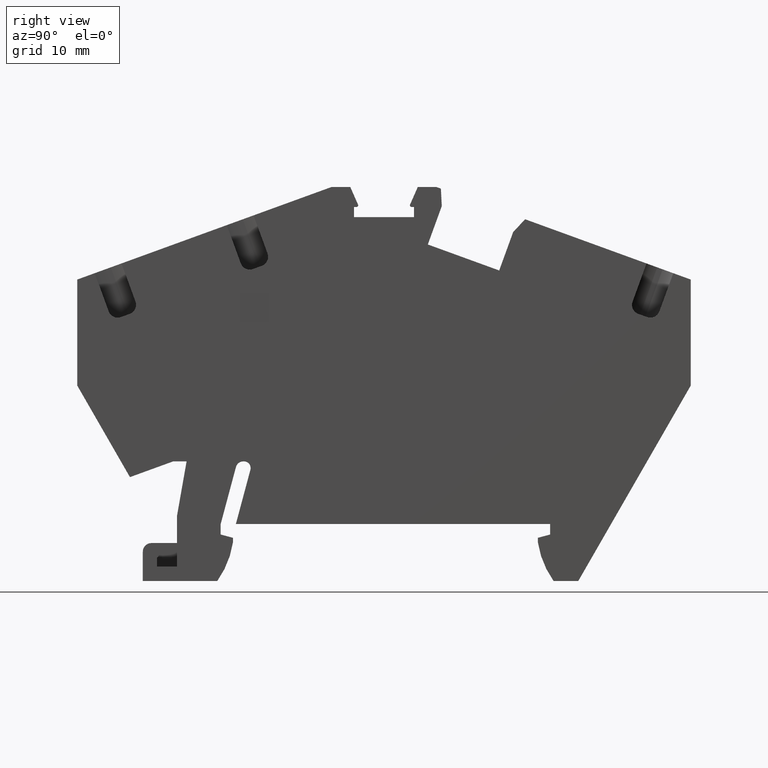
[diagram: clean part render]
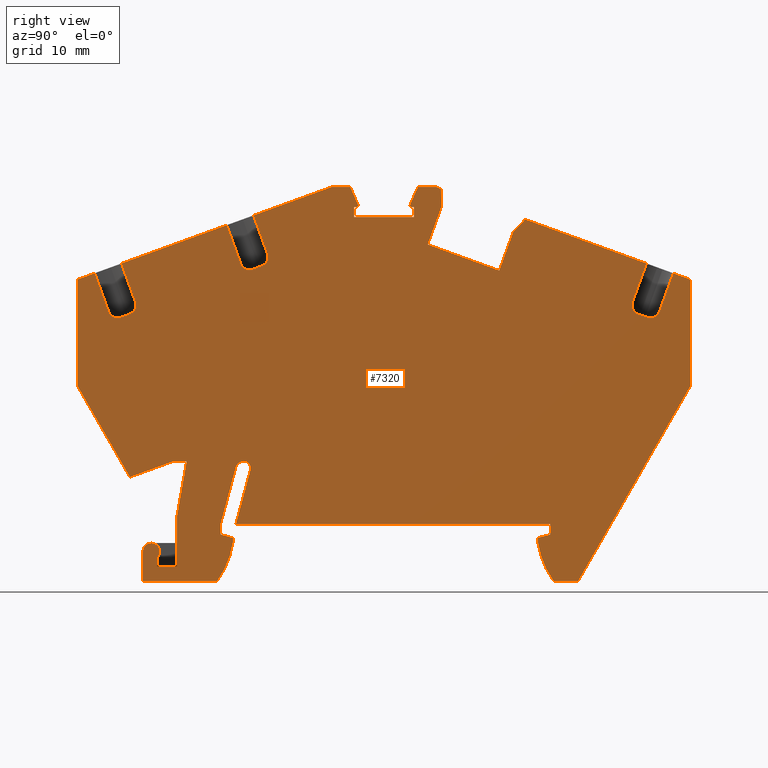
[diagram: same view with one face highlighted and labeled with its STEP entity id]
A machine part, right view. The second image highlights one B-rep face of the part: STEP entity #7320.
In plain terms, the highlighted planar face has unit normal (1, 0, 0).
Its self-contained STEP definition (entity closure, byte-faithful):
#120=CARTESIAN_POINT('',(-91.7914113552714,14.7210876087096,
0.949999999999994));
#130=VERTEX_POINT('',#120);
#280=CARTESIAN_POINT('',(-90.4914113552713,14.3727536585496,
0.949999999999994));
#290=VERTEX_POINT('',#280);
#320=CARTESIAN_POINT('',(-57.0914399670214,5.42325829786009,
0.949999999999994));
#330=DIRECTION('',(0.965925826289174,-0.258819045102127,0.));
#340=VECTOR('',#330,1.);
#350=LINE('',#320,#340);
#360=EDGE_CURVE('',#130,#290,#350,.T.);
#950=CARTESIAN_POINT('',(-69.9771648864539,45.2646062067674,
0.949999999999994));
#960=VERTEX_POINT('',#950);
#990=CARTESIAN_POINT('',(-80.6937578600559,15.821008998583,
0.949999999999994));
#1000=DIRECTION('',(0.342020143328471,0.939692620784889,0.));
#1010=VECTOR('',#1000,1.);
#1020=LINE('',#990,#1010);
#1030=CARTESIAN_POINT('',(-68.5064782701951,49.305284475995,
0.949999999999994));
#1040=VERTEX_POINT('',#1030);
#1050=EDGE_CURVE('',#960,#1040,#1020,.T.);
#1340=CARTESIAN_POINT('',(-71.0317569803008,51.3210876087068,
0.949999999999994));
#1350=VERTEX_POINT('',#1340);
#1500=CARTESIAN_POINT('',(-69.0743843786572,51.321087608707,
0.949999999999994));
#1510=VERTEX_POINT('',#1500);
#1540=CARTESIAN_POINT('',(-57.0914399670214,51.3210876087085,
0.949999999999994));
#1550=DIRECTION('',(-1.,-1.20681242776754E-13,0.));
#1560=VECTOR('',#1550,1.);
#1570=LINE('',#1540,#1560);
#1580=EDGE_CURVE('',#1510,#1350,#1570,.T.);
#1700=CARTESIAN_POINT('',(-57.0914113552716,15.8210876087094,
0.949999999999994));
#1710=DIRECTION('',(0.,0.,1.));
#1720=DIRECTION('',(1.,0.,0.));
#1730=AXIS2_PLACEMENT_3D('',#1700,#1710,#1720);
#1740=PLANE('',#1730);
#1750=ORIENTED_EDGE('',*,*,#1580,.T.);
#1760=CARTESIAN_POINT('',(-57.0914399670214,46.9596525240051,
0.949999999999994));
#1770=DIRECTION('',(0.939692620785908,-0.342020143325669,0.));
#1780=VECTOR('',#1770,1.);
#1790=LINE('',#1760,#1780);
#1800=CARTESIAN_POINT('',(-68.6002129107962,51.1485033084673,
0.949999999999994));
#1810=VERTEX_POINT('',#1800);
#1820=EDGE_CURVE('',#1510,#1810,#1790,.T.);
#1830=ORIENTED_EDGE('',*,*,#1820,.F.);
#1840=CARTESIAN_POINT('',(-66.8036763714981,15.821008998583,
0.949999999999994));
#1850=DIRECTION('',(0.0507881482326916,-0.998709449238914,0.));
#1860=VECTOR('',#1850,1.);
#1870=LINE('',#1840,#1860);
#1880=EDGE_CURVE('',#1810,#1040,#1870,.T.);
#1890=ORIENTED_EDGE('',*,*,#1880,.F.);
#1900=ORIENTED_EDGE('',*,*,#1050,.T.);
#1910=CARTESIAN_POINT('',(-57.0914399670214,40.5745858891534,
0.949999999999994));
#1920=DIRECTION('',(0.93969262078595,-0.342020143325555,0.));
#1930=VECTOR('',#1920,1.);
#1940=LINE('',#1910,#1930);
#1950=CARTESIAN_POINT('',(-62.4596239201825,42.5284450601687,
0.949999999999994));
#1960=VERTEX_POINT('',#1950);
#1970=EDGE_CURVE('',#960,#1960,#1940,.T.);
#1980=ORIENTED_EDGE('',*,*,#1970,.F.);
#1990=CARTESIAN_POINT('',(-72.180335680264,15.821008998583,
0.949999999999994));
#2000=DIRECTION('',(-0.342020143328668,-0.939692620784817,0.));
#2010=VECTOR('',#2000,1.);
#2020=LINE('',#1990,#2010);
#2030=CARTESIAN_POINT('',(-60.9889373038445,46.5691233296529,
0.949999999999994));
#2040=VERTEX_POINT('',#2030);
#2050=EDGE_CURVE('',#2040,#1960,#2020,.T.);
#2060=ORIENTED_EDGE('',*,*,#2050,.T.);
#2070=CARTESIAN_POINT('',(-89.5730501818881,15.821008998583,
0.949999999999994));
#2080=DIRECTION('',(-0.680864038377421,-0.732409831477151,0.));
#2090=VECTOR('',#2080,1.);
#2100=LINE('',#2070,#2090);
#2110=CARTESIAN_POINT('',(-59.7323341760186,47.920859407926,
0.949999999999994));
#2120=VERTEX_POINT('',#2110);
#2130=EDGE_CURVE('',#2120,#2040,#2100,.T.);
#2140=ORIENTED_EDGE('',*,*,#2130,.T.);
#2150=CARTESIAN_POINT('',(-57.0914399670214,46.9596525240051,
0.949999999999994));
#2160=DIRECTION('',(0.939692620785908,-0.342020143325669,0.));
#2170=VECTOR('',#2160,1.);
#2180=LINE('',#2150,#2170);
#2190=CARTESIAN_POINT('',(-46.9435281105688,43.2661146682992,
0.949999999999994));
#2200=VERTEX_POINT('',#2190);
#2210=EDGE_CURVE('',#2120,#2200,#2180,.T.);
#2220=ORIENTED_EDGE('',*,*,#2210,.F.);
#2230=CARTESIAN_POINT('',(-56.9327296506361,15.821008998583,
0.950000000000169));
#2240=DIRECTION('',(0.342020143325669,0.939692620785908,
-7.02216063075412E-15));
#2250=VECTOR('',#2240,1.);
#2260=LINE('',#2230,#2250);
#2270=CARTESIAN_POINT('',(-48.4142147268765,39.2254363988999,
0.949999999999994));
#2280=VERTEX_POINT('',#2270);
#2290=EDGE_CURVE('',#2280,#2200,#2260,.T.);
#2300=ORIENTED_EDGE('',*,*,#2290,.T.);
#2310=CARTESIAN_POINT('',(-47.4745221060906,38.8834162555742,
0.949999999999994));
#2320=DIRECTION('',(1.13992297817283E-15,3.33941159224203E-15,1.));
#2330=DIRECTION('',(0.,1.,-3.33941159224203E-15));
#2340=AXIS2_PLACEMENT_3D('',#2310,#2320,#2330);
#2350=CIRCLE('',#2340,1.);
#2360=CARTESIAN_POINT('',(-47.8165422494162,37.9437236347883,
0.949999999999994));
#2370=VERTEX_POINT('',#2360);
#2380=EDGE_CURVE('',#2280,#2370,#2350,.T.);
#2390=ORIENTED_EDGE('',*,*,#2380,.F.);
#2400=CARTESIAN_POINT('',(-57.0914399670214,41.3195103298601,
0.949999999999994));
#2410=DIRECTION('',(0.939692620785908,-0.342020143325669,0.));
#2420=VECTOR('',#2410,1.);
#2430=LINE('',#2400,#2420);
#2440=CARTESIAN_POINT('',(-47.6286037250096,37.8753196060324,
0.949999999999994));
#2450=VERTEX_POINT('',#2440);
#2460=EDGE_CURVE('',#2370,#2450,#2430,.T.);
#2470=ORIENTED_EDGE('',*,*,#2460,.F.);
#2480=CARTESIAN_POINT('',(-57.0914399670214,41.3195103298601,
0.949999999999994));
#2490=DIRECTION('',(-0.939692620785907,0.342020143325673,0.));
#2500=VECTOR('',#2490,1.);
#2510=LINE('',#2480,#2500);
#2520=CARTESIAN_POINT('',(-47.0647881527802,37.6701075201251,
0.949999999999994));
#2530=VERTEX_POINT('',#2520);
#2540=EDGE_CURVE('',#2530,#2450,#2510,.T.);
#2550=ORIENTED_EDGE('',*,*,#2540,.T.);
#2560=CARTESIAN_POINT('',(-57.0914399670214,41.3195103298601,
0.949999999999994));
#2570=DIRECTION('',(-0.939692620785908,0.342020143325669,0.));
#2580=VECTOR('',#2570,1.);
#2590=LINE('',#2560,#2580);
#2600=CARTESIAN_POINT('',(-46.8768496286304,37.6017034914626,
0.949999999999994));
#2610=VERTEX_POINT('',#2600);
#2620=EDGE_CURVE('',#2610,#2530,#2590,.T.);
#2630=ORIENTED_EDGE('',*,*,#2620,.T.);
#2640=CARTESIAN_POINT('',(-46.5348294853047,38.5413961122485,
0.949999999999994));
#2650=DIRECTION('',(1.13992297817274E-15,3.33941159224206E-15,1.));
#2660=DIRECTION('',(0.,1.,-3.33941159224206E-15));
#2670=AXIS2_PLACEMENT_3D('',#2640,#2650,#2660);
#2680=CIRCLE('',#2670,1.);
#2690=CARTESIAN_POINT('',(-45.5951368645188,38.1993759689229,
0.949999999999994));
#2700=VERTEX_POINT('',#2690);
#2710=EDGE_CURVE('',#2610,#2700,#2680,.T.);
#2720=ORIENTED_EDGE('',*,*,#2710,.F.);
#2730=CARTESIAN_POINT('',(-53.7401963332085,15.821008998583,
0.950000000000168));
#2740=DIRECTION('',(-0.342020143325669,-0.939692620785908,
7.02216063075412E-15));
#2750=VECTOR('',#2740,1.);
#2760=LINE('',#2730,#2750);
#2770=CARTESIAN_POINT('',(-44.1244502482112,42.2400542383223,
0.949999999999994));
#2780=VERTEX_POINT('',#2770);
#2790=EDGE_CURVE('',#2780,#2700,#2760,.T.);
#2800=ORIENTED_EDGE('',*,*,#2790,.T.);
#2810=CARTESIAN_POINT('',(-42.2914113552746,41.5728826430411,
0.949999999999994));
#2820=VERTEX_POINT('',#2810);
#2830=EDGE_CURVE('',#2780,#2820,#2180,.T.);
#2840=ORIENTED_EDGE('',*,*,#2830,.F.);
#2850=CARTESIAN_POINT('',(-42.2914113552746,15.821008998583,
0.949999999999994));
#2860=DIRECTION('',(0.,-1.,0.));
#2870=VECTOR('',#2860,1.);
#2880=LINE('',#2850,#2870);
#2890=CARTESIAN_POINT('',(-42.2914113552746,30.4013315533565,
0.949999999999994));
#2900=VERTEX_POINT('',#2890);
#2910=EDGE_CURVE('',#2820,#2900,#2880,.T.);
#2920=ORIENTED_EDGE('',*,*,#2910,.F.);
#2930=CARTESIAN_POINT('',(-50.6820269625919,15.821008998583,
0.949999999999994));
#2940=DIRECTION('',(-0.498780693240353,-0.86672822733004,0.));
#2950=VECTOR('',#2940,1.);
#2960=LINE('',#2930,#2950);
#2970=CARTESIAN_POINT('',(-54.1308827743639,9.82795288280909,
0.949999999999994));
#2980=VERTEX_POINT('',#2970);
#2990=EDGE_CURVE('',#2900,#2980,#2960,.T.);
#3000=ORIENTED_EDGE('',*,*,#2990,.F.);
#3010=CARTESIAN_POINT('',(-57.0914399670214,9.82795288280909,
0.949999999999994));
#3020=DIRECTION('',(-1.,0.,0.));
#3030=VECTOR('',#3020,1.);
#3040=LINE('',#3010,#3030);
#3050=CARTESIAN_POINT('',(-56.7373583126248,9.82795288280909,
0.949999999999989));
#3060=VERTEX_POINT('',#3050);
#3070=EDGE_CURVE('',#2980,#3060,#3040,.T.);
#3080=ORIENTED_EDGE('',*,*,#3070,.F.);
#3090=CARTESIAN_POINT('',(-48.9974386758954,15.3364593970074,
0.949999999999994));
#3100=DIRECTION('',(0.,0.,1.));
#3110=DIRECTION('',(1.,1.20764509503601E-13,0.));
#3120=AXIS2_PLACEMENT_3D('',#3090,#3100,#3110);
#3130=CIRCLE('',#3120,9.4999999999997);
#3140=CARTESIAN_POINT('',(-58.3914113552724,13.9210876087083,
0.949999999999989));
#3150=VERTEX_POINT('',#3140);
#3160=EDGE_CURVE('',#3150,#3060,#3130,.T.);
#3170=ORIENTED_EDGE('',*,*,#3160,.T.);
#3180=CARTESIAN_POINT('',(-58.3914113552727,15.821008998583,
0.949999999999994));
#3190=DIRECTION('',(-1.20681242776754E-13,1.,0.));
#3200=VECTOR('',#3190,1.);
#3210=LINE('',#3180,#3200);
#3220=CARTESIAN_POINT('',(-58.3914113552725,14.3727536585494,
0.949999999999994));
#3230=VERTEX_POINT('',#3220);
#3240=EDGE_CURVE('',#3150,#3230,#3210,.T.);
#3250=ORIENTED_EDGE('',*,*,#3240,.F.);
#3260=CARTESIAN_POINT('',(-57.0914399670214,14.7210799422142,
0.949999999999994));
#3270=DIRECTION('',(0.965925826289197,0.25881904510204,0.));
#3280=VECTOR('',#3270,1.);
#3290=LINE('',#3260,#3280);
#3300=CARTESIAN_POINT('',(-57.0914113552714,14.7210876087095,
0.949999999999994));
#3310=VERTEX_POINT('',#3300);
#3320=EDGE_CURVE('',#3230,#3310,#3290,.T.);
#3330=ORIENTED_EDGE('',*,*,#3320,.F.);
#3340=CARTESIAN_POINT('',(-57.0914113552716,15.821008998583,
0.949999999999994));
#3350=DIRECTION('',(-1.20681242776754E-13,1.,0.));
#3360=VECTOR('',#3350,1.);
#3370=LINE('',#3340,#3360);
#3380=CARTESIAN_POINT('',(-57.0914113552716,15.8210876087094,
0.949999999999994));
#3390=VERTEX_POINT('',#3380);
#3400=EDGE_CURVE('',#3310,#3390,#3370,.T.);
#3410=ORIENTED_EDGE('',*,*,#3400,.F.);
#3420=CARTESIAN_POINT('',(-57.0914399670214,15.8210876087094,
0.949999999999994));
#3430=DIRECTION('',(-1.,-1.48710207451752E-13,0.));
#3440=VECTOR('',#3430,1.);
#3450=LINE('',#3420,#3440);
#3460=CARTESIAN_POINT('',(-90.1914113552721,15.8210876087045,
0.949999999999994));
#3470=VERTEX_POINT('',#3460);
#3480=EDGE_CURVE('',#3390,#3470,#3450,.T.);
#3490=ORIENTED_EDGE('',*,*,#3480,.F.);
#3500=CARTESIAN_POINT('',(-90.1914324187906,15.821008998583,
0.949999999999994));
#3510=DIRECTION('',(0.258819045102841,0.965925826288983,0.));
#3520=VECTOR('',#3510,1.);
#3530=LINE('',#3500,#3520);
#3540=CARTESIAN_POINT('',(-88.6590563678109,21.5399142771337,
0.949999999999994));
#3550=VERTEX_POINT('',#3540);
#3560=EDGE_CURVE('',#3470,#3550,#3530,.T.);
#3570=ORIENTED_EDGE('',*,*,#3560,.F.);
#3580=CARTESIAN_POINT('',(-89.3352044462132,21.7210876087057,
0.949999999999994));
#3590=DIRECTION('',(-1.88349469989046E-31,-7.56143785790124E-15,-1.));
#3600=DIRECTION('',(-1.,-1.20681242776754E-13,9.12712067340711E-28));
#3610=AXIS2_PLACEMENT_3D('',#3580,#3590,#3600);
#3620=CIRCLE('',#3610,0.7);
#3630=CARTESIAN_POINT('',(-89.3352044462133,22.4210876087057,
0.949999999999994));
#3640=VERTEX_POINT('',#3630);
#3650=EDGE_CURVE('',#3640,#3550,#3620,.T.);
#3660=ORIENTED_EDGE('',*,*,#3650,.T.);
#3670=CARTESIAN_POINT('',(-57.0914399670214,22.4210876087096,
0.949999999999994));
#3680=DIRECTION('',(-1.,-1.20681242776754E-13,0.));
#3690=VECTOR('',#3680,1.);
#3700=LINE('',#3670,#3690);
#3710=CARTESIAN_POINT('',(-89.4090850948444,22.4210876087057,
0.949999999999994));
#3720=VERTEX_POINT('',#3710);
#3730=EDGE_CURVE('',#3640,#3720,#3700,.T.);
#3740=ORIENTED_EDGE('',*,*,#3730,.F.);
#3750=CARTESIAN_POINT('',(-89.4090850948423,21.621087608711,
0.949999999999994));
#3760=DIRECTION('',(0.,0.,1.));
#3770=DIRECTION('',(1.,0.,0.));
#3780=AXIS2_PLACEMENT_3D('',#3750,#3760,#3770);
#3790=CIRCLE('',#3780,0.800000000000103);
#3800=CARTESIAN_POINT('',(-90.1818257558743,21.828142844793,
0.949999999999994));
#3810=VERTEX_POINT('',#3800);
#3820=EDGE_CURVE('',#3720,#3810,#3790,.T.);
#3830=ORIENTED_EDGE('',*,*,#3820,.F.);
#3840=CARTESIAN_POINT('',(-91.7914324187939,15.821008998583,
0.949999999999994));
#3850=DIRECTION('',(-0.258819045102824,-0.965925826288987,0.));
#3860=VECTOR('',#3850,1.);
#3870=LINE('',#3840,#3860);
#3880=CARTESIAN_POINT('',(-91.7914113552714,15.821087608719,
0.949999999999994));
#3890=VERTEX_POINT('',#3880);
#3900=EDGE_CURVE('',#3810,#3890,#3870,.T.);
#3910=ORIENTED_EDGE('',*,*,#3900,.F.);
#3920=CARTESIAN_POINT('',(-91.7914113552714,15.821008998583,
0.949999999999994));
#3930=DIRECTION('',(0.,-1.,0.));
#3940=VECTOR('',#3930,1.);
#3950=LINE('',#3920,#3940);
#3960=EDGE_CURVE('',#3890,#130,#3950,.T.);
#3970=ORIENTED_EDGE('',*,*,#3960,.F.);
#3980=ORIENTED_EDGE('',*,*,#360,.F.);
#3990=CARTESIAN_POINT('',(-90.4914113552713,15.821008998583,
0.949999999999994));
#4000=DIRECTION('',(0.,-1.,0.));
#4010=VECTOR('',#4000,1.);
#4020=LINE('',#3990,#4010);
#4030=CARTESIAN_POINT('',(-90.4914113552713,13.921087608707,
0.949999999999989));
#4040=VERTEX_POINT('',#4030);
#4050=EDGE_CURVE('',#290,#4040,#4020,.T.);
#4060=ORIENTED_EDGE('',*,*,#4050,.F.);
#4070=CARTESIAN_POINT('',(-99.8853840346481,15.3364593970085,
0.949999999999994));
#4080=DIRECTION('',(0.,0.,1.));
#4090=DIRECTION('',(1.,8.32667268468867E-17,0.));
#4100=AXIS2_PLACEMENT_3D('',#4070,#4080,#4090);
#4110=CIRCLE('',#4100,9.49999999999992);
#4120=CARTESIAN_POINT('',(-92.150355008404,9.82108760870995,
0.949999999999989));
#4130=VERTEX_POINT('',#4120);
#4140=EDGE_CURVE('',#4130,#4040,#4110,.T.);
#4150=ORIENTED_EDGE('',*,*,#4140,.T.);
#4160=CARTESIAN_POINT('',(-57.0914399670214,9.82108760870995,
0.949999999999994));
#4170=DIRECTION('',(-1.,0.,0.));
#4180=VECTOR('',#4170,1.);
#4190=LINE('',#4160,#4180);
#4200=CARTESIAN_POINT('',(-99.991411355272,9.82108760870995,
0.949999999999994));
#4210=VERTEX_POINT('',#4200);
#4220=EDGE_CURVE('',#4130,#4210,#4190,.T.);
#4230=ORIENTED_EDGE('',*,*,#4220,.F.);
#4240=CARTESIAN_POINT('',(-99.9914113552694,15.821008998583,
0.949999999999994));
#4250=DIRECTION('',(4.33092715129891E-13,1.,0.));
#4260=VECTOR('',#4250,1.);
#4270=LINE('',#4240,#4260);
#4280=CARTESIAN_POINT('',(-99.9914113552707,12.9210876087103,
0.949999999999994));
#4290=VERTEX_POINT('',#4280);
#4300=EDGE_CURVE('',#4210,#4290,#4270,.T.);
#4310=ORIENTED_EDGE('',*,*,#4300,.F.);
#4320=CARTESIAN_POINT('',(-99.0914113552707,12.9210876087099,
0.949999999999994));
#4330=DIRECTION('',(0.,0.,1.));
#4340=DIRECTION('',(1.,0.,0.));
#4350=AXIS2_PLACEMENT_3D('',#4320,#4330,#4340);
#4360=CIRCLE('',#4350,0.9);
#4370=CARTESIAN_POINT('',(-99.091411355272,13.8210876087099,
0.949999999999994));
#4380=VERTEX_POINT('',#4370);
#4390=EDGE_CURVE('',#4380,#4290,#4360,.T.);
#4400=ORIENTED_EDGE('',*,*,#4390,.T.);
#4410=CARTESIAN_POINT('',(-99.091411355272,12.9210876086877,
0.949999999999994));
#4420=DIRECTION('',(-3.08148791101958E-33,5.55111512312578E-17,1.));
#4430=DIRECTION('',(1.,5.55111512312578E-17,2.05268329735081E-48));
#4440=AXIS2_PLACEMENT_3D('',#4410,#4420,#4430);
#4450=CIRCLE('',#4440,0.899999999999636);
#4460=CARTESIAN_POINT('',(-98.4914113552716,12.2502672154385,
0.949999999999994));
#4470=VERTEX_POINT('',#4460);
#4480=EDGE_CURVE('',#4470,#4380,#4450,.T.);
#4490=ORIENTED_EDGE('',*,*,#4480,.T.);
#4500=CARTESIAN_POINT('',(-98.4914113552716,15.821008998583,
0.949999999999994));
#4510=DIRECTION('',(-5.55111512312578E-17,1.,0.));
#4520=VECTOR('',#4510,1.);
#4530=LINE('',#4500,#4520);
#4540=CARTESIAN_POINT('',(-98.4914113552716,11.3210876086873,
0.949999999999994));
#4550=VERTEX_POINT('',#4540);
#4560=EDGE_CURVE('',#4550,#4470,#4530,.T.);
#4570=ORIENTED_EDGE('',*,*,#4560,.T.);
#4580=CARTESIAN_POINT('',(-57.0914399670214,11.3210876086873,
0.949999999999994));
#4590=DIRECTION('',(-1.,-5.55111512312578E-17,0.));
#4600=VECTOR('',#4590,1.);
#4610=LINE('',#4580,#4600);
#4620=CARTESIAN_POINT('',(-96.3914113552722,11.3210876086873,
0.949999999999994));
#4630=VERTEX_POINT('',#4620);
#4640=EDGE_CURVE('',#4630,#4550,#4610,.T.);
#4650=ORIENTED_EDGE('',*,*,#4640,.T.);
#4660=CARTESIAN_POINT('',(-96.3914113552722,15.821008998583,
0.949999999999994));
#4670=DIRECTION('',(0.,-1.,0.));
#4680=VECTOR('',#4670,1.);
#4690=LINE('',#4660,#4680);
#4700=CARTESIAN_POINT('',(-96.3914113552722,16.6826776071324,
0.949999999999994));
#4710=VERTEX_POINT('',#4700);
#4720=EDGE_CURVE('',#4710,#4630,#4690,.T.);
#4730=ORIENTED_EDGE('',*,*,#4720,.T.);
#4740=CARTESIAN_POINT('',(-96.5433467793888,15.821008998583,
0.949999999999994));
#4750=DIRECTION('',(0.173648177666793,0.984807753012232,0.));
#4760=VECTOR('',#4750,1.);
#4770=LINE('',#4740,#4760);
#4780=CARTESIAN_POINT('',(-95.3795748456269,22.4210876087139,
0.949999999999994));
#4790=VERTEX_POINT('',#4780);
#4800=EDGE_CURVE('',#4710,#4790,#4770,.T.);
#4810=ORIENTED_EDGE('',*,*,#4800,.F.);
#4820=CARTESIAN_POINT('',(-57.0914399670214,22.4210876087139,
0.949999999999994));
#4830=DIRECTION('',(-1.,0.,0.));
#4840=VECTOR('',#4830,1.);
#4850=LINE('',#4820,#4840);
#4860=CARTESIAN_POINT('',(-96.7949313705927,22.4210876087139,
0.949999999999994));
#4870=VERTEX_POINT('',#4860);
#4880=EDGE_CURVE('',#4790,#4870,#4850,.T.);
#4890=ORIENTED_EDGE('',*,*,#4880,.F.);
#4900=CARTESIAN_POINT('',(-57.0914399670214,36.8719766760618,
0.949999999999994));
#4910=DIRECTION('',(-0.939692620785879,-0.342020143325751,0.));
#4920=VECTOR('',#4910,1.);
#4930=LINE('',#4900,#4920);
#4940=CARTESIAN_POINT('',(-101.345776693128,20.7647153705612,
0.949999999999999));
#4950=VERTEX_POINT('',#4940);
#4960=EDGE_CURVE('',#4870,#4950,#4930,.T.);
#4970=ORIENTED_EDGE('',*,*,#4960,.F.);
#4980=CARTESIAN_POINT('',(-98.5007957479613,15.821008998583,
0.949999999999994));
#4990=DIRECTION('',(-0.498780693240336,0.86672822733005,0.));
#5000=VECTOR('',#4990,1.);
#5010=LINE('',#4980,#5000);
#5020=CARTESIAN_POINT('',(-106.891411355273,30.4013315533481,
0.949999999999994));
#5030=VERTEX_POINT('',#5020);
#5040=EDGE_CURVE('',#4950,#5030,#5010,.T.);
#5050=ORIENTED_EDGE('',*,*,#5040,.F.);
#5060=CARTESIAN_POINT('',(-106.891411355272,15.821008998583,
0.949999999999994));
#5070=DIRECTION('',(-1.20681242776754E-13,1.,0.));
#5080=VECTOR('',#5070,1.);
#5090=LINE('',#5060,#5080);
#5100=CARTESIAN_POINT('',(-106.891411355275,41.5728826430331,
0.949999999999994));
#5110=VERTEX_POINT('',#5100);
#5120=EDGE_CURVE('',#5030,#5110,#5090,.T.);
#5130=ORIENTED_EDGE('',*,*,#5120,.F.);
#5140=CARTESIAN_POINT('',(-57.0914399670214,59.6985898956732,
0.949999999999994));
#5150=DIRECTION('',(0.939692620785864,0.342020143325792,0.));
#5160=VECTOR('',#5150,1.);
#5170=LINE('',#5140,#5160);
#5180=CARTESIAN_POINT('',(-105.058401074085,42.2400438244904,
0.949999999999994));
#5190=VERTEX_POINT('',#5180);
#5200=EDGE_CURVE('',#5110,#5190,#5170,.T.);
#5210=ORIENTED_EDGE('',*,*,#5200,.F.);
#5220=CARTESIAN_POINT('',(-95.4426587794092,15.821008998583,
0.950000000000163));
#5230=DIRECTION('',(-0.342020143325769,0.939692620785872,
-7.07767178198537E-15));
#5240=VECTOR('',#5230,1.);
#5250=LINE('',#5220,#5240);
#5260=CARTESIAN_POINT('',(-103.587714457777,38.1993655550914,
0.949999999999996));
#5270=VERTEX_POINT('',#5260);
#5280=EDGE_CURVE('',#5270,#5190,#5250,.T.);
#5290=ORIENTED_EDGE('',*,*,#5280,.T.);
#5300=CARTESIAN_POINT('',(-102.648021836991,38.5413856984172,
0.949999999999994));
#5310=DIRECTION('',(-1.25459442485344E-15,-4.32196695483852E-15,-1.));
#5320=DIRECTION('',(0.,-1.,4.32196695483852E-15));
#5330=AXIS2_PLACEMENT_3D('',#5300,#5310,#5320);
#5340=CIRCLE('',#5330,1.);
#5350=CARTESIAN_POINT('',(-102.306001693665,37.6016930776313,
0.949999999999994));
#5360=VERTEX_POINT('',#5350);
#5370=EDGE_CURVE('',#5360,#5270,#5340,.T.);
#5380=ORIENTED_EDGE('',*,*,#5370,.T.);
#5390=CARTESIAN_POINT('',(-57.0914399670214,54.0584477015215,
0.949999999999994));
#5400=DIRECTION('',(0.939692620785908,0.342020143325669,0.));
#5410=VECTOR('',#5400,1.);
#5420=LINE('',#5390,#5410);
#5430=CARTESIAN_POINT('',(-102.118063169516,37.6700971062937,
0.949999999999994));
#5440=VERTEX_POINT('',#5430);
#5450=EDGE_CURVE('',#5360,#5440,#5420,.T.);
#5460=ORIENTED_EDGE('',*,*,#5450,.F.);
#5470=CARTESIAN_POINT('',(-57.0914399670214,54.0584477015215,
0.949999999999994));
#5480=DIRECTION('',(0.939692620785908,0.342020143325669,0.));
#5490=VECTOR('',#5480,1.);
#5500=LINE('',#5470,#5490);
#5510=CARTESIAN_POINT('',(-101.554247597528,37.8753091921128,
0.949999999999994));
#5520=VERTEX_POINT('',#5510);
#5530=EDGE_CURVE('',#5440,#5520,#5500,.T.);
#5540=ORIENTED_EDGE('',*,*,#5530,.F.);
#5550=CARTESIAN_POINT('',(-57.0914399670214,54.0584477015215,
0.949999999999994));
#5560=DIRECTION('',(-0.939692620785908,-0.342020143325669,0.));
#5570=VECTOR('',#5560,1.);
#5580=LINE('',#5550,#5570);
#5590=CARTESIAN_POINT('',(-101.366309072879,37.9437132209569,
0.949999999999994));
#5600=VERTEX_POINT('',#5590);
#5610=EDGE_CURVE('',#5600,#5520,#5580,.T.);
#5620=ORIENTED_EDGE('',*,*,#5610,.T.);
#5630=CARTESIAN_POINT('',(-101.708329216205,38.8834058417428,
0.949999999999994));
#5640=DIRECTION('',(1.25459442485363E-15,4.32196695483859E-15,1.));
#5650=DIRECTION('',(0.,1.,-4.32196695483859E-15));
#5660=AXIS2_PLACEMENT_3D('',#5630,#5640,#5650);
#5670=CIRCLE('',#5660,1.);
#5680=CARTESIAN_POINT('',(-100.768636595419,39.2254259850686,
0.949999999999994));
#5690=VERTEX_POINT('',#5680);
#5700=EDGE_CURVE('',#5600,#5690,#5670,.T.);
#5710=ORIENTED_EDGE('',*,*,#5700,.F.);
#5720=CARTESIAN_POINT('',(-92.2501254619806,15.821008998583,
0.950000000000171));
#5730=DIRECTION('',(-0.342020143325795,0.939692620785862,
-7.07767178198537E-15));
#5740=VECTOR('',#5730,1.);
#5750=LINE('',#5720,#5740);
#5760=CARTESIAN_POINT('',(-102.239323211727,43.2661042544677,
0.949999999999994));
#5770=VERTEX_POINT('',#5760);
#5780=EDGE_CURVE('',#5690,#5770,#5750,.T.);
#5790=ORIENTED_EDGE('',*,*,#5780,.F.);
#5800=CARTESIAN_POINT('',(-91.1509502864542,47.3019419457121,
0.949999999999994));
#5810=VERTEX_POINT('',#5800);
#5820=EDGE_CURVE('',#5770,#5810,#5170,.T.);
#5830=ORIENTED_EDGE('',*,*,#5820,.F.);
#5840=CARTESIAN_POINT('',(-79.6928277467651,15.821008998583,
0.950000000000202));
#5850=DIRECTION('',(-0.342020143325769,0.939692620785872,
-7.07767178198537E-15));
#5860=VECTOR('',#5850,1.);
#5870=LINE('',#5840,#5860);
#5880=CARTESIAN_POINT('',(-89.6802636701461,43.261263676313,
0.949999999999994));
#5890=VERTEX_POINT('',#5880);
#5900=EDGE_CURVE('',#5890,#5810,#5870,.T.);
#5910=ORIENTED_EDGE('',*,*,#5900,.T.);
#5920=CARTESIAN_POINT('',(-88.7405710493602,43.6032838196387,
0.949999999999994));
#5930=DIRECTION('',(-1.25459442485344E-15,-4.32196695483852E-15,-1.));
#5940=DIRECTION('',(0.,-1.,4.32196695483852E-15));
#5950=AXIS2_PLACEMENT_3D('',#5920,#5930,#5940);
#5960=CIRCLE('',#5950,1.);
#5970=CARTESIAN_POINT('',(-88.3985509060345,42.6635911988528,
0.949999999999994));
#5980=VERTEX_POINT('',#5970);
#5990=EDGE_CURVE('',#5980,#5890,#5960,.T.);
#6000=ORIENTED_EDGE('',*,*,#5990,.T.);
#6010=CARTESIAN_POINT('',(-57.0914399670214,54.0584477015234,
0.949999999999994));
#6020=DIRECTION('',(0.939692620785908,0.342020143325669,0.));
#6030=VECTOR('',#6020,1.);
#6040=LINE('',#6010,#6030);
#6050=CARTESIAN_POINT('',(-88.2106123818847,42.7319952275153,
0.949999999999994));
#6060=VERTEX_POINT('',#6050);
#6070=EDGE_CURVE('',#5980,#6060,#6040,.T.);
#6080=ORIENTED_EDGE('',*,*,#6070,.F.);
#6090=CARTESIAN_POINT('',(-57.0914399670214,54.0584477015234,
0.949999999999994));
#6100=DIRECTION('',(0.939692620785908,0.342020143325669,0.));
#6110=VECTOR('',#6100,1.);
#6120=LINE('',#6090,#6110);
#6130=CARTESIAN_POINT('',(-87.646796809897,42.9372073133346,
0.949999999999994));
#6140=VERTEX_POINT('',#6130);
#6150=EDGE_CURVE('',#6060,#6140,#6120,.T.);
#6160=ORIENTED_EDGE('',*,*,#6150,.F.);
#6170=CARTESIAN_POINT('',(-57.0914399670214,54.0584477015234,
0.949999999999994));
#6180=DIRECTION('',(-0.939692620785908,-0.342020143325669,0.));
#6190=VECTOR('',#6180,1.);
#6200=LINE('',#6170,#6190);
#6210=CARTESIAN_POINT('',(-87.4588582852486,43.0056113421785,
0.949999999999997));
#6220=VERTEX_POINT('',#6210);
#6230=EDGE_CURVE('',#6220,#6140,#6200,.T.);
#6240=ORIENTED_EDGE('',*,*,#6230,.T.);
#6250=CARTESIAN_POINT('',(-87.8008784285743,43.9453039629644,
0.949999999999994));
#6260=DIRECTION('',(1.25459442485363E-15,4.32196695483859E-15,1.));
#6270=DIRECTION('',(0.,1.,-4.32196695483859E-15));
#6280=AXIS2_PLACEMENT_3D('',#6250,#6260,#6270);
#6290=CIRCLE('',#6280,1.);
#6300=CARTESIAN_POINT('',(-86.8611858077884,44.2873241062902,
0.949999999999991));
#6310=VERTEX_POINT('',#6300);
#6320=EDGE_CURVE('',#6220,#6310,#6290,.T.);
#6330=ORIENTED_EDGE('',*,*,#6320,.F.);
#6340=CARTESIAN_POINT('',(-76.5002944293363,15.821008998583,
0.950000000000209));
#6350=DIRECTION('',(-0.342020143325795,0.939692620785862,
-7.07767178198537E-15));
#6360=VECTOR('',#6350,1.);
#6370=LINE('',#6340,#6360);
#6380=CARTESIAN_POINT('',(-88.3318724240966,48.3280023756895,
0.949999999999994));
#6390=VERTEX_POINT('',#6380);
#6400=EDGE_CURVE('',#6310,#6390,#6370,.T.);
#6410=ORIENTED_EDGE('',*,*,#6400,.F.);
#6420=CARTESIAN_POINT('',(-57.0914399670214,59.6985898956732,
0.949999999999994));
#6430=DIRECTION('',(0.939692620785864,0.342020143325792,0.));
#6440=VECTOR('',#6430,1.);
#6450=LINE('',#6420,#6440);
#6460=CARTESIAN_POINT('',(-80.1084383318848,51.3210876087057,
0.949999999999994));
#6470=VERTEX_POINT('',#6460);
#6480=EDGE_CURVE('',#6390,#6470,#6450,.T.);
#6490=ORIENTED_EDGE('',*,*,#6480,.F.);
#6500=CARTESIAN_POINT('',(-57.0914399670214,51.3210876087085,
0.949999999999994));
#6510=DIRECTION('',(-1.,-1.20681242776754E-13,0.));
#6520=VECTOR('',#6510,1.);
#6530=LINE('',#6500,#6520);
#6540=CARTESIAN_POINT('',(-78.1430649812728,51.321087608706,
0.949999999999994));
#6550=VERTEX_POINT('',#6540);
#6560=EDGE_CURVE('',#6550,#6470,#6530,.T.);
#6570=ORIENTED_EDGE('',*,*,#6560,.T.);
#6580=CARTESIAN_POINT('',(-62.5423768046803,15.821008998583,
0.949999999999994));
#6590=DIRECTION('',(0.402320578212237,-0.915498854366827,0.));
#6600=VECTOR('',#6590,1.);
#6610=LINE('',#6580,#6600);
#6620=CARTESIAN_POINT('',(-77.3227758010558,49.4544821070031,
0.949999999999993));
#6630=VERTEX_POINT('',#6620);
#6640=EDGE_CURVE('',#6550,#6630,#6610,.T.);
#6650=ORIENTED_EDGE('',*,*,#6640,.F.);
#6660=CARTESIAN_POINT('',(-77.478410606297,49.386087608707,
0.949999999999994));
#6670=DIRECTION('',(1.88349469989046E-31,7.56143785790124E-15,1.));
#6680=DIRECTION('',(1.,1.20681242776754E-13,-9.12712067340711E-28));
#6690=AXIS2_PLACEMENT_3D('',#6660,#6670,#6680);
#6700=CIRCLE('',#6690,0.169999999998936);
#6710=CARTESIAN_POINT('',(-77.478410606297,49.2160876087081,
0.949999999999995));
#6720=VERTEX_POINT('',#6710);
#6730=EDGE_CURVE('',#6720,#6630,#6700,.T.);
#6740=ORIENTED_EDGE('',*,*,#6730,.T.);
#6750=CARTESIAN_POINT('',(-57.0914399670214,49.2160876087105,
0.949999999999994));
#6760=DIRECTION('',(-1.,-1.20681242776754E-13,0.));
#6770=VECTOR('',#6760,1.);
#6780=LINE('',#6750,#6770);
#6790=CARTESIAN_POINT('',(-77.7539113552754,49.216087608708,
0.949999999999994));
#6800=VERTEX_POINT('',#6790);
#6810=EDGE_CURVE('',#6720,#6800,#6780,.T.);
#6820=ORIENTED_EDGE('',*,*,#6810,.F.);
#6830=CARTESIAN_POINT('',(-77.7539113552714,15.821008998583,
0.949999999999994));
#6840=DIRECTION('',(1.20681242776754E-13,-1.,0.));
#6850=VECTOR('',#6840,1.);
#6860=LINE('',#6830,#6850);
#6870=CARTESIAN_POINT('',(-77.7539113552753,48.146087608709,
0.949999999999994));
#6880=VERTEX_POINT('',#6870);
#6890=EDGE_CURVE('',#6800,#6880,#6860,.T.);
#6900=ORIENTED_EDGE('',*,*,#6890,.F.);
#6910=CARTESIAN_POINT('',(-57.0914399670214,48.1460876087115,
0.949999999999994));
#6920=DIRECTION('',(1.,1.20681242776754E-13,0.));
#6930=VECTOR('',#6920,1.);
#6940=LINE('',#6910,#6930);
#6950=CARTESIAN_POINT('',(-71.4289113552756,48.1460876087098,
0.949999999999994));
#6960=VERTEX_POINT('',#6950);
#6970=EDGE_CURVE('',#6880,#6960,#6940,.T.);
#6980=ORIENTED_EDGE('',*,*,#6970,.F.);
#6990=CARTESIAN_POINT('',(-71.4289113552717,15.821008998583,
0.949999999999994));
#7000=DIRECTION('',(-1.20681242776754E-13,1.,0.));
#7010=VECTOR('',#7000,1.);
#7020=LINE('',#6990,#7010);
#7030=CARTESIAN_POINT('',(-71.4289113552757,49.2160876087088,
0.949999999999994));
#7040=VERTEX_POINT('',#7030);
#7050=EDGE_CURVE('',#6960,#7040,#7020,.T.);
#7060=ORIENTED_EDGE('',*,*,#7050,.F.);
#7070=CARTESIAN_POINT('',(-57.0914399670214,49.2160876087105,
0.949999999999994));
#7080=DIRECTION('',(-1.,-1.20681242776754E-13,0.));
#7090=VECTOR('',#7080,1.);
#7100=LINE('',#7070,#7090);
#7110=CARTESIAN_POINT('',(-71.6964113552756,49.2160876087088,
0.949999999999994));
#7120=VERTEX_POINT('',#7110);
#7130=EDGE_CURVE('',#7040,#7120,#7100,.T.);
#7140=ORIENTED_EDGE('',*,*,#7130,.F.);
#7150=CARTESIAN_POINT('',(-71.6964113552756,49.3860876087086,
0.949999999999994));
#7160=DIRECTION('',(1.88349469989046E-31,7.56143785790124E-15,1.));
#7170=DIRECTION('',(1.,1.20681242776754E-13,-9.12712067340711E-28));
#7180=AXIS2_PLACEMENT_3D('',#7150,#7160,#7170);
#7190=CIRCLE('',#7180,0.169999999999318);
#7200=CARTESIAN_POINT('',(-71.8520461605177,49.4544821070056,
0.949999999999994));
#7210=VERTEX_POINT('',#7200);
#7220=EDGE_CURVE('',#7210,#7120,#7190,.T.);
#7230=ORIENTED_EDGE('',*,*,#7220,.T.);
#7240=CARTESIAN_POINT('',(-86.6324451568834,15.821008998583,
0.949999999999994));
#7250=DIRECTION('',(0.402320578212016,0.915498854366924,0.));
#7260=VECTOR('',#7250,1.);
#7270=LINE('',#7240,#7260);
#7280=EDGE_CURVE('',#7210,#1350,#7270,.T.);
#7290=ORIENTED_EDGE('',*,*,#7280,.F.);
#7300=EDGE_LOOP('',(#7290,#7230,#7140,#7060,#6980,#6900,#6820,#6740,
#6650,#6570,#6490,#6410,#6330,#6240,#6160,#6080,#6000,#5910,#5830,#5790,
#5710,#5620,#5540,#5460,#5380,#5290,#5210,#5130,#5050,#4970,#4890,#4810,
#4730,#4650,#4570,#4490,#4400,#4310,#4230,#4150,#4060,#3980,#3970,#3910,
#3830,#3740,#3660,#3570,#3490,#3410,#3330,#3250,#3170,#3080,#3000,#2920,
#2840,#2800,#2720,#2630,#2550,#2470,#2390,#2300,#2220,#2140,#2060,#1980,
#1900,#1890,#1830,#1750));
#7310=FACE_OUTER_BOUND('',#7300,.T.);
#7320=ADVANCED_FACE('',(#7310),#1740,.T.);